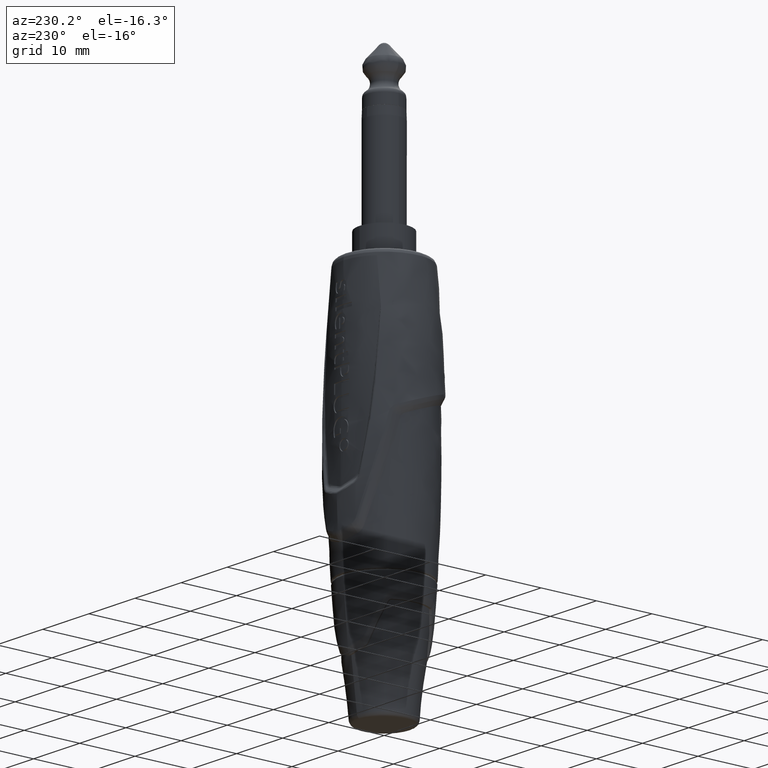
[diagram: clean part render]
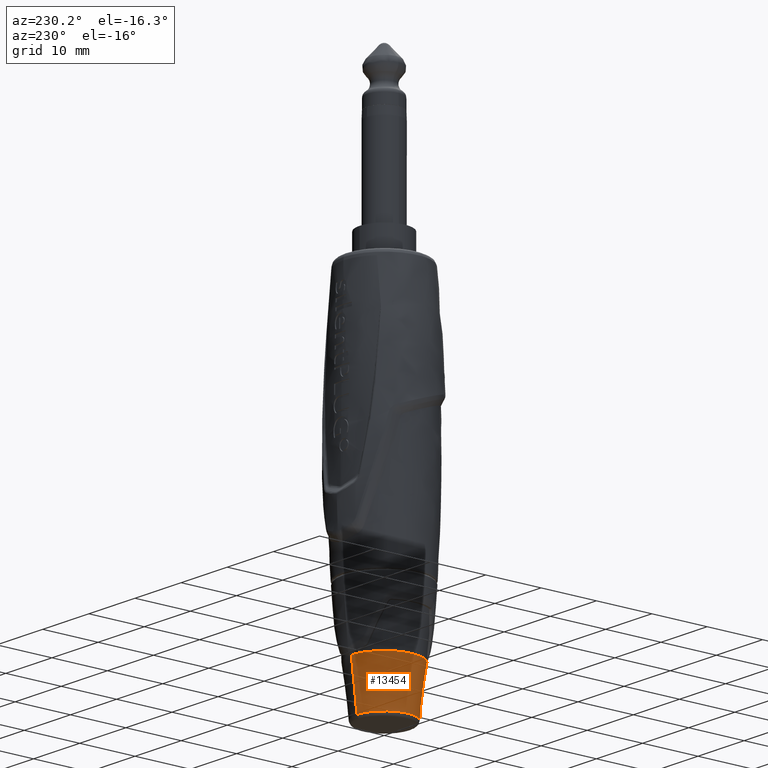
[diagram: same view with one face highlighted and labeled with its STEP entity id]
A machine part, auxiliary view. The second image highlights one B-rep face of the part: STEP entity #13454.
In plain terms, the highlighted conical surface has half-angle 6.864 deg.
Its self-contained STEP definition (entity closure, byte-faithful):
#2704=CARTESIAN_POINT('',(0.E0,0.E0,-7.980427843015E1));
#2705=DIRECTION('',(0.E0,0.E0,1.E0));
#2706=DIRECTION('',(-1.094578837970E-11,1.E0,0.E0));
#2707=AXIS2_PLACEMENT_3D('',#2704,#2705,#2706);
#3336=DIRECTION('',(-3.527769009917E-10,-1.195086706222E-1,9.928331570038E-1));
#3337=VECTOR('',#3336,8.479594310546E0);
#3338=CARTESIAN_POINT('',(0.E0,-4.921982785625E0,-8.822310082114E1));
#3339=LINE('',#3338,#3337);
#3340=CARTESIAN_POINT('',(0.E0,0.E0,-8.822310082114E1));
#3341=DIRECTION('',(0.E0,0.E0,1.E0));
#3342=DIRECTION('',(0.E0,1.E0,0.E0));
#3343=AXIS2_PLACEMENT_3D('',#3340,#3341,#3342);
#3345=DIRECTION('',(-3.790956765357E-10,1.195086706147E-1,9.928331570047E-1));
#3346=VECTOR('',#3345,8.479594312089E0);
#3347=CARTESIAN_POINT('',(0.E0,4.921982785625E0,-8.822310082114E1));
#3348=LINE('',#3347,#3346);
#8338=CARTESIAN_POINT('',(0.E0,4.921982785625E0,-8.822310082114E1));
#8340=VERTEX_POINT('',#8338);
#8341=CARTESIAN_POINT('',(-3.214576939721E-9,5.935367829215E0,
-7.980427843015E1));
#8342=VERTEX_POINT('',#8341);
#8344=CARTESIAN_POINT('',(0.E0,-4.921982785625E0,-8.822310082114E1));
#8346=VERTEX_POINT('',#8344);
#8347=CARTESIAN_POINT('',(-2.991405605311E-9,-5.935367829094E0,
-7.980427843169E1));
#8348=VERTEX_POINT('',#8347);
#13440=CARTESIAN_POINT('',(0.E0,0.E0,-8.401368962565E1));
#13441=DIRECTION('',(0.E0,0.E0,1.E0));
#13442=DIRECTION('',(0.E0,1.E0,0.E0));
#13443=AXIS2_PLACEMENT_3D('',#13440,#13441,#13442);
#13444=CONICAL_SURFACE('',#13443,5.428675307420E0,6.863747422597E0);
#13445=ORIENTED_EDGE('',*,*,#12111,.T.);
#13447=ORIENTED_EDGE('',*,*,#13446,.F.);
#13449=ORIENTED_EDGE('',*,*,#13448,.F.);
#13451=ORIENTED_EDGE('',*,*,#13450,.T.);
#13452=EDGE_LOOP('',(#13445,#13447,#13449,#13451));
#13453=FACE_OUTER_BOUND('',#13452,.F.);
#13454=ADVANCED_FACE('',(#13453),#13444,.T.);
#2708=CIRCLE('',#2707,5.935367829215E0);
#3344=CIRCLE('',#3343,4.921982785625E0);
#12111=EDGE_CURVE('',#8342,#8348,#2708,.T.);
#13446=EDGE_CURVE('',#8346,#8348,#3339,.T.);
#13448=EDGE_CURVE('',#8340,#8346,#3344,.T.);
#13450=EDGE_CURVE('',#8340,#8342,#3348,.T.);